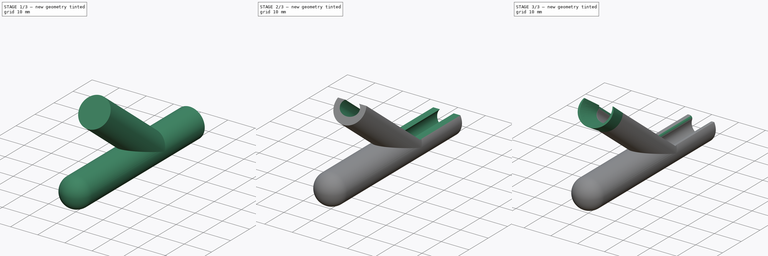
[diagram: build sequence overview — one tinted view per stage of 3, left to right]
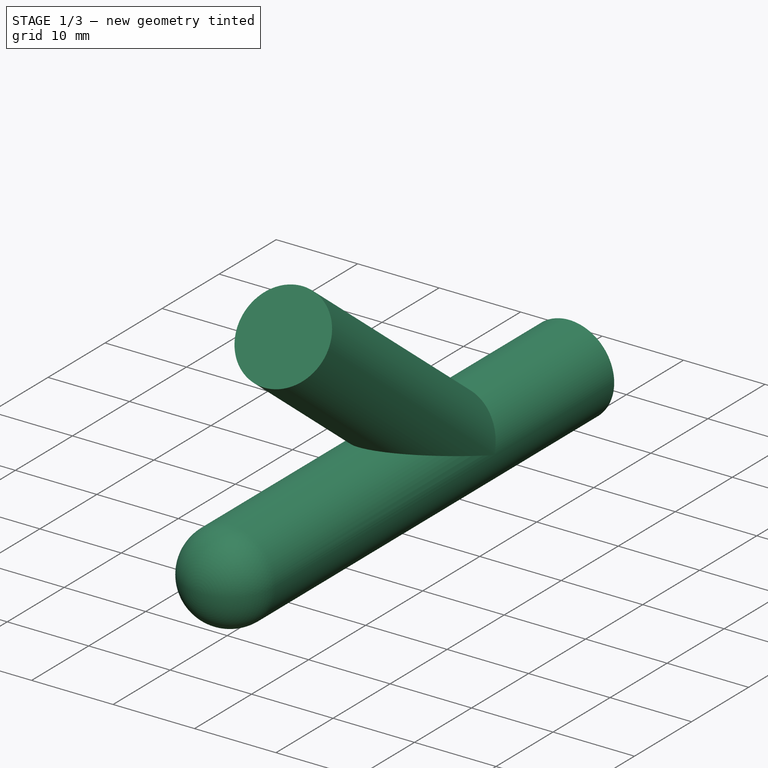
[diagram: stage 1 of 3 — iso view after this stage's code; geometry added in this stage tinted green]
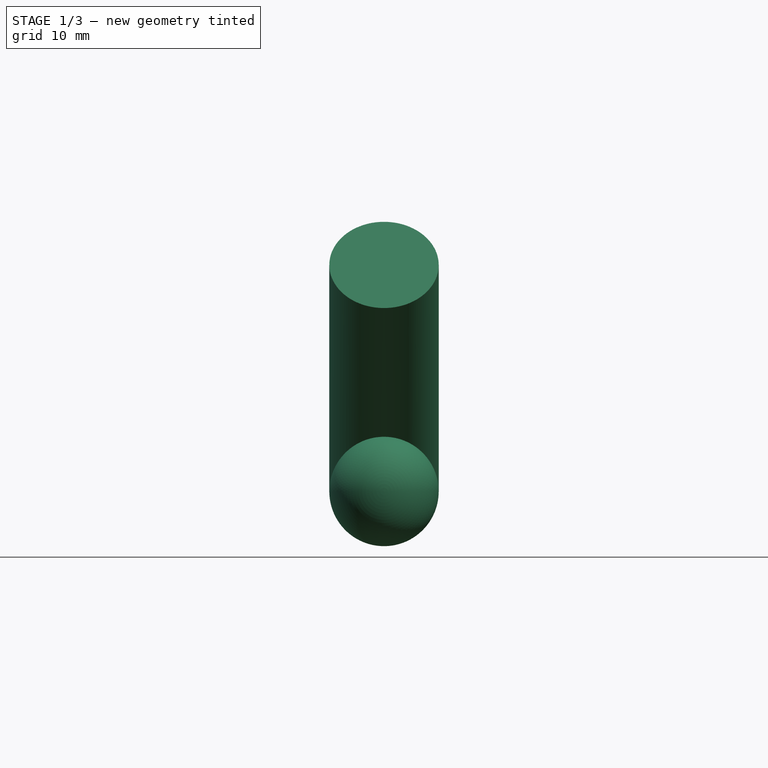
[diagram: stage 1 of 3 — front view after this stage's code; geometry added in this stage tinted green]
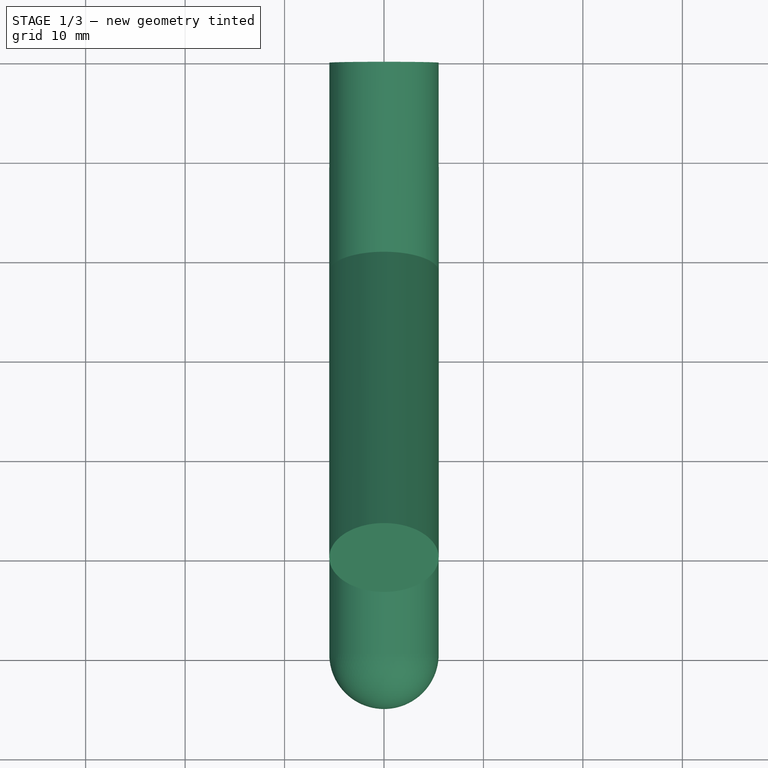
[diagram: stage 1 of 3 — top view after this stage's code; geometry added in this stage tinted green]
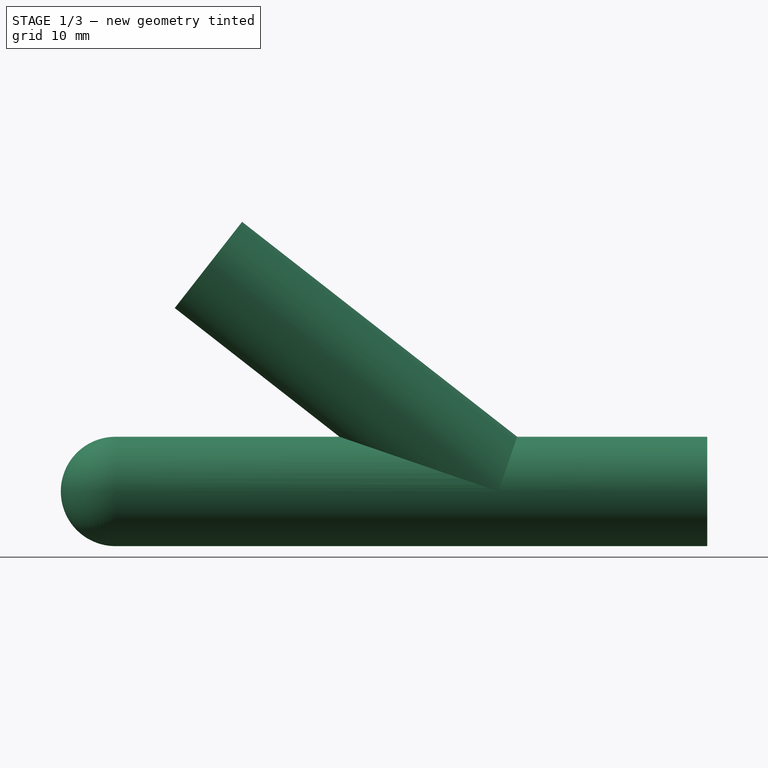
[diagram: stage 1 of 3 — right view after this stage's code; geometry added in this stage tinted green]
FCSTD DOCUMENT  (FreeCAD 1.1R39747 (Git))
Label: Укладыватель в гофру
License: All rights reserved
LicenseURL: https://en.wikipedia.org/wiki/All_rights_reserved
objects: Sketcher::SketchObject×6, PartDesign::Revolution×1, PartDesign::AdditiveCylinder×1, PartDesign::Pocket×1, App::DocumentObjectGroup×1, PartDesign::SubtractivePipe×1, PartDesign::AdditiveLoft×1, PartDesign::Fillet×1, PartDesign::Body×1, App::Point×1
note: 31 computed .brp shape members not serialized (recipe doc carries the construction recipe); baked Part::Feature solids carry a one-line shape summary decoded from their .brp

FEATURE [Sketcher::SketchObject] Sketch
  ArcFitTolerance = 1e-06
  AttachmentSupport = -> [YZ_Plane]
  ExternalTypes = [0]
  FullyConstrained = true
  MakeInternals = false
  MapMode = 5
  Placement = pos=(0,0,0) rot=(0.57735,0.57735,0.57735;2.0944rad)
  sketch-geometry (4):
    g0: ArcOfCircle CenterX=-59.5 CenterY=0 CenterZ=0 NormalX=0 NormalY=0 NormalZ=1 AngleXU=0 Radius=5.5 StartAngle=1.5708 EndAngle=3.14159
    g1: LineSegment StartX=-59.5 StartY=5.5 StartZ=0 EndX=0 EndY=5.5 EndZ=0
    g2: LineSegment StartX=-65 StartY=-1.8e-15 StartZ=0 EndX=0 EndY=0 EndZ=0
    g3: LineSegment StartX=0 StartY=0 StartZ=0 EndX=0 EndY=5.5 EndZ=0
  constraints (11):
    c: PointOnObject(g0,g-1)
    c: Horizontal(g1)
    c: Tangent(g1,g0) = 1.5708
    c: Coincident(g2,g0)
    c: Coincident(g2,g-1)
    c: Coincident(g3,g2)
    c: Coincident(g3,g1)
    c: Vertical(g3)
    c: DistanceY(g2,g1) = 5.5
    c: DistanceX(g2,g2) = 65
    c: PointOnObject(g0,g2)
FEATURE [PartDesign::Revolution] Revolution
  Angle = 360
  Angle2 = 60
  Axis = (1e-16,1,-1e-16)
  Base = (0,0,0)
  Placement = pos=(0,0,0) rot=(1,1,1;2.0944rad)
  Profile = -> Sketch
  ReferenceAxis = -> Y_Axis
  Refine = true
  Suppressed = false
  Type = 0
FEATURE [Sketcher::SketchObject] Sketch001
  ArcFitTolerance = 1e-06
  AttachmentSupport = -> [XZ_Plane]
  ExternalTypes = [0]
  FullyConstrained = false
  MakeInternals = false
  MapMode = 5
  Placement = pos=(0,0,0) rot=(1,0,0;1.5708rad)
  sketch-geometry (4):
    g0: ArcOfCircle CenterX=0 CenterY=0 CenterZ=0 NormalX=0 NormalY=0 NormalZ=1 AngleXU=0 Radius=10.0797 StartAngle=0.3207 EndAngle=2.82089
    g1: ArcOfCircle CenterX=0 CenterY=0 CenterZ=0 NormalX=0 NormalY=0 NormalZ=1 AngleXU=0 Radius=4 StartAngle=2.22365 EndAngle=7.20113
    g2: LineSegment StartX=-9.56574 StartY=3.17742 StartZ=0 EndX=-2.42981 EndY=3.17742 EndZ=0
    g3: LineSegment StartX=2.42981 StartY=3.17742 StartZ=0 EndX=9.56574 EndY=3.17742 EndZ=0
  constraints (10):
    c: Coincident(g0,g-1)
    c: Coincident(g1,g0)
    c: Coincident(g2,g0)
    c: Coincident(g2,g1)
    c: Coincident(g3,g1)
    c: Coincident(g3,g0)
    c: Horizontal(g2)
    c: Horizontal(g3)
    c: Horizontal(g1,g1)
    c: Diameter(g1) = 8
FEATURE [PartDesign::AdditiveCylinder] Cylinder
  Angle = 360
  AttacherType = Attacher::AttachEngine3D
  AttachmentOffset = pos=(0,-21,0) rot=(1,0,0;0.907571rad)
  AttachmentSupport = -> [XY_Plane]
  BaseFeature = -> Revolution
  FirstAngle = 0
  Height = 37
  MapMode = 5
  Placement = pos=(0,-21,0) rot=(1,0,0;0.907571rad)
  Radius = 5.5
  Refine = true
  SecondAngle = 0
  Suppressed = false
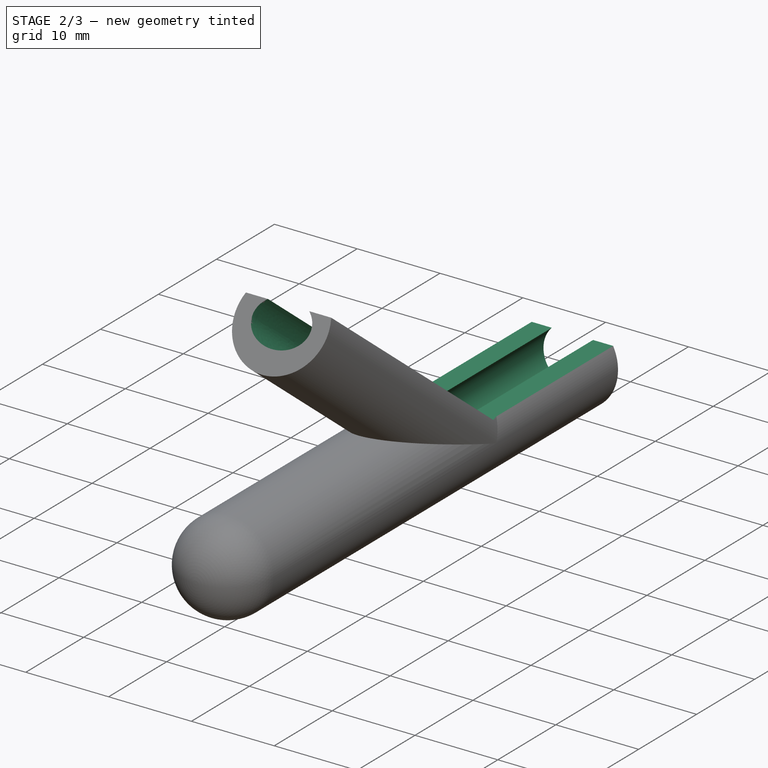
[diagram: stage 2 of 3 — iso view after this stage's code; geometry added in this stage tinted green]
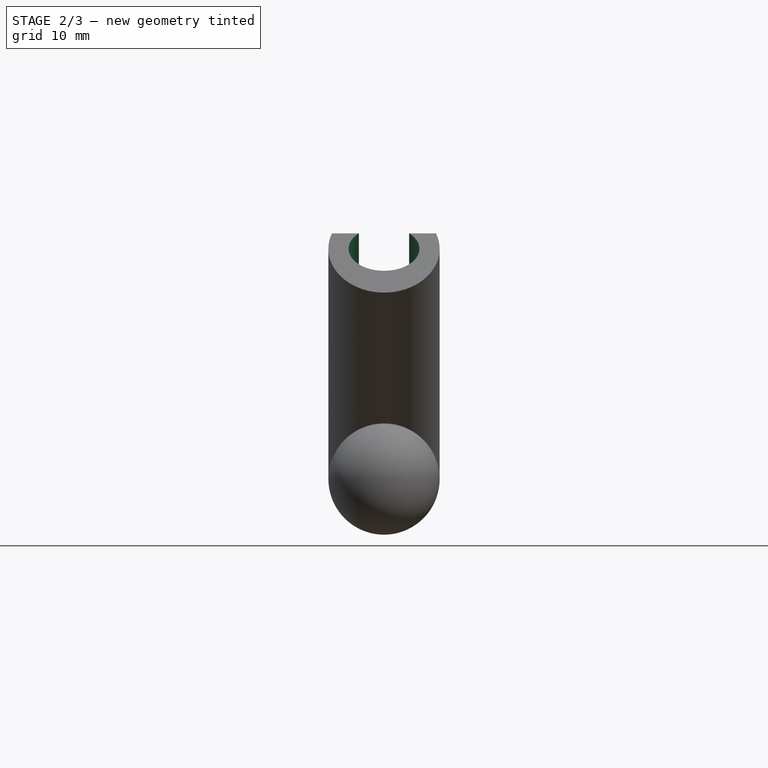
[diagram: stage 2 of 3 — front view after this stage's code; geometry added in this stage tinted green]
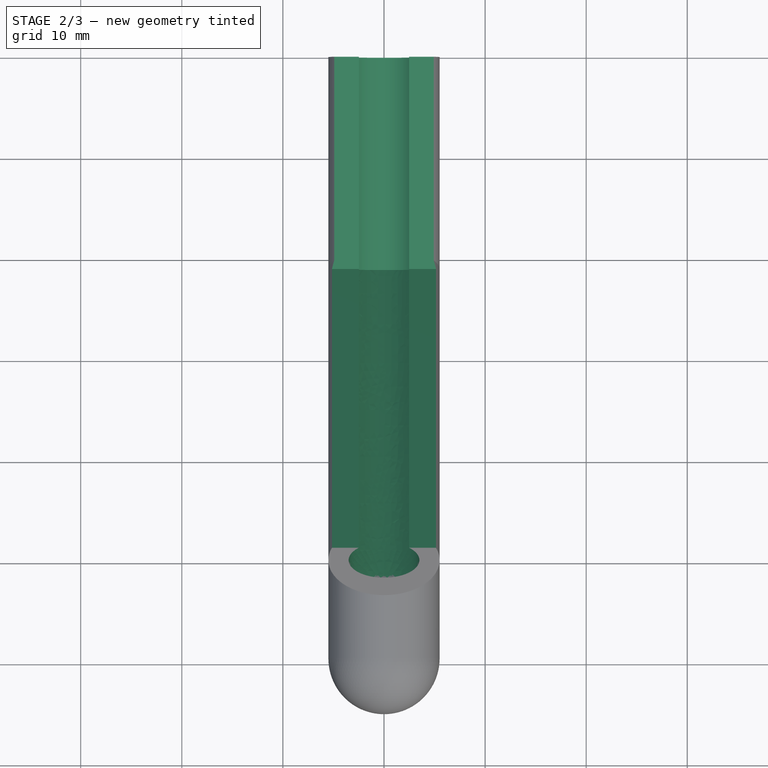
[diagram: stage 2 of 3 — top view after this stage's code; geometry added in this stage tinted green]
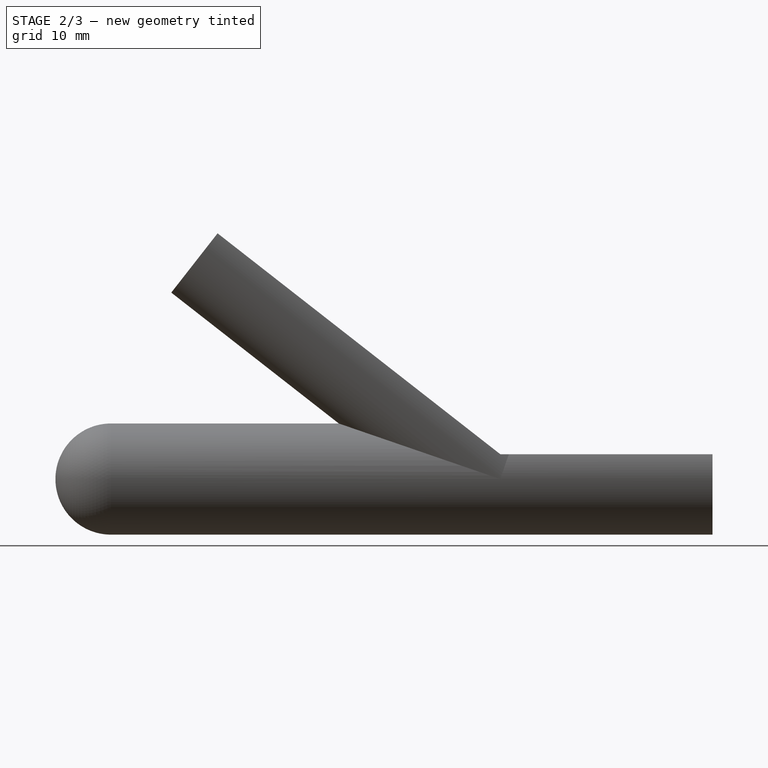
[diagram: stage 2 of 3 — right view after this stage's code; geometry added in this stage tinted green]
FEATURE [Sketcher::SketchObject] Sketch002
  ArcFitTolerance = 1e-06
  AttachmentSupport = -> [YZ_Plane]
  ExternalGeometry = -> [Cylinder]
  ExternalTypes = [0]
  FullyConstrained = false
  MakeInternals = false
  MapMode = 5
  Placement = pos=(0,0,0) rot=(0.57735,0.57735,0.57735;2.0944rad)
  sketch-geometry (4):
    g0: LineSegment StartX=-65 StartY=9.799e-13 StartZ=0 EndX=-65 EndY=51.4406 EndZ=0
    g1: LineSegment StartX=-65 StartY=51.4406 StartZ=0 EndX=-92.6475 EndY=51.4406 EndZ=0
    g2: LineSegment StartX=-92.6475 StartY=51.4406 StartZ=0 EndX=-92.6475 EndY=0 EndZ=0
    g3: LineSegment StartX=-92.6475 StartY=0 StartZ=0 EndX=-65 EndY=9.799e-13 EndZ=0
  constraints (9):
    c: Vertical(g0)
    c: Coincident(g1,g0)
    c: Horizontal(g1)
    c: Coincident(g2,g1)
    c: PointOnObject(g2,g-1)
    c: Coincident(g3,g2)
    c: Coincident(g3,g0)
    c: Vertical(g2)
    c: Coincident(g0,g-5)
FEATURE [PartDesign::Pocket] Pocket
  BaseFeature = -> Cylinder
  Direction = (-1,0,0)
  Length = 21
  Length2 = 12
  Placement = pos=(0,-21,0) rot=(1,0,0;0.907571rad)
  Profile = -> Sketch002
  ReferenceAxis = -> Sketch002 [N_Axis]
  Refine = true
  Suppressed = false
  Type = 4
FEATURE [App::DocumentObjectGroup] Measurements
FEATURE [Sketcher::SketchObject] Sketch003
  ArcFitTolerance = 1e-06
  AttachmentSupport = -> [YZ_Plane]
  ExternalGeometry = -> [Pocket]
  ExternalTypes = [0,0,0]
  FullyConstrained = false
  MakeInternals = false
  MapMode = 5
  Placement = pos=(0,0,0) rot=(0.57735,0.57735,0.57735;2.0944rad)
  sketch-geometry (2):
    g0: LineSegment StartX=-21 StartY=-4e-16 StartZ=0 EndX=0 EndY=0 EndZ=0
    g1: LineSegment StartX=-21 StartY=-4e-16 StartZ=0 EndX=-60.7647 EndY=31.0676 EndZ=0
  constraints (5):
    c: Coincident(g0,g-3)
    c: Coincident(g0,g-1)
    c: Coincident(g1,g0)
    c: Angle(g0,g1) = 2.47837
    c: PointOnObject(g-3,g1)
FEATURE [PartDesign::SubtractivePipe] SubtractivePipe
  AuxilleryCurvelinear = true
  AuxillerySpineTangent = false
  BaseFeature = -> Pocket
  Binormal = (0,0,0)
  Mode = 0
  Placement = pos=(0,-21,0) rot=(1,0,0;0.907571rad)
  Profile = -> Sketch001
  Refine = true
  Spine = -> Sketch003
  SpineTangent = false
  Suppressed = false
  Transformation = 0
  Transition = 0
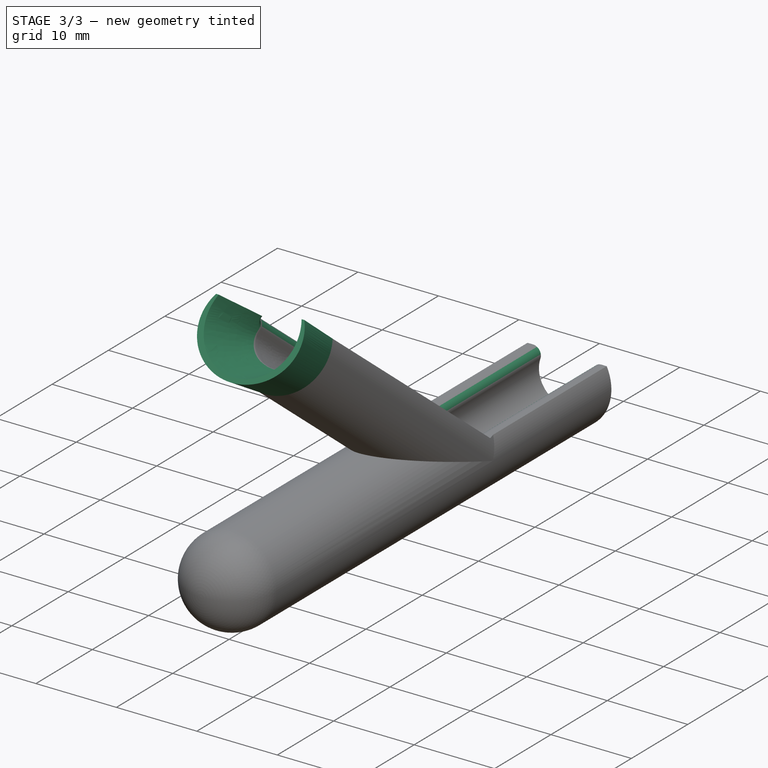
[diagram: stage 3 of 3 — iso view after this stage's code; geometry added in this stage tinted green]
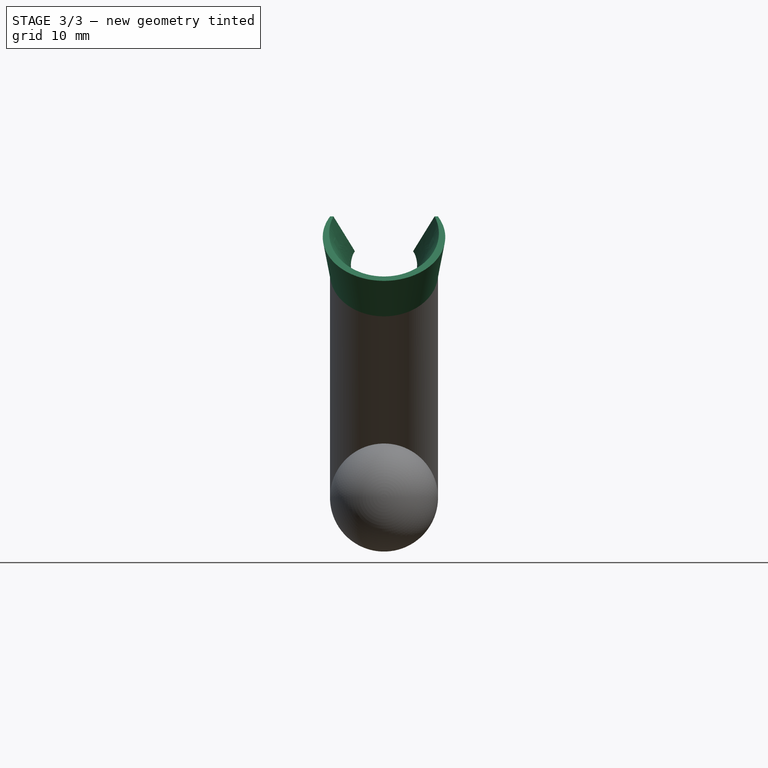
[diagram: stage 3 of 3 — front view after this stage's code; geometry added in this stage tinted green]
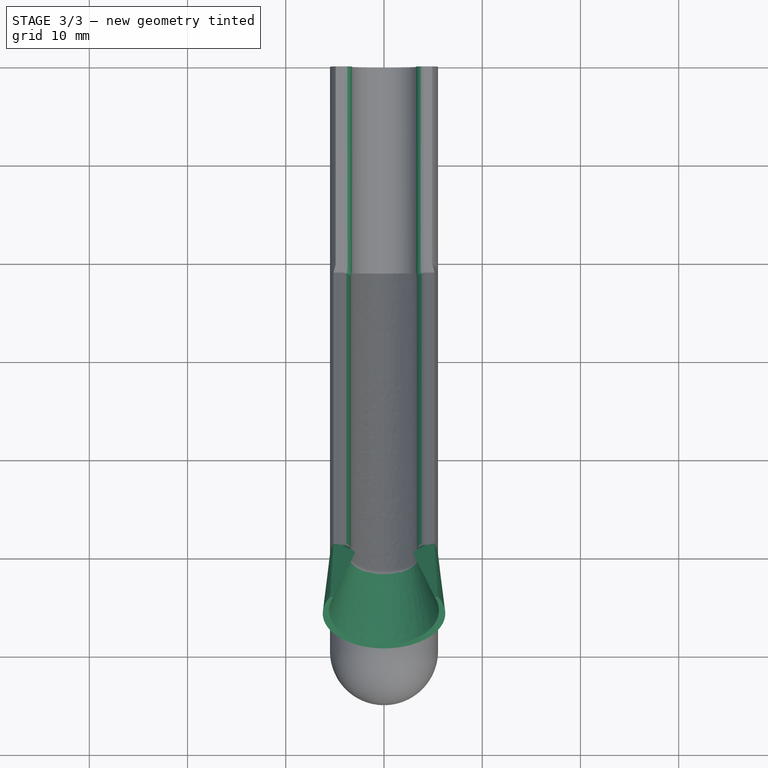
[diagram: stage 3 of 3 — top view after this stage's code; geometry added in this stage tinted green]
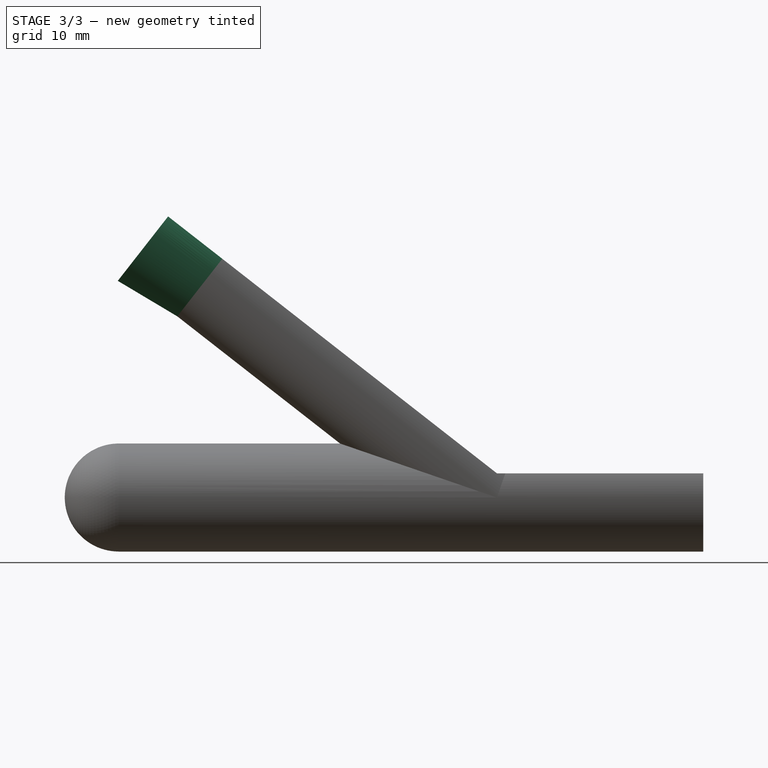
[diagram: stage 3 of 3 — right view after this stage's code; geometry added in this stage tinted green]
FEATURE [Sketcher::SketchObject] Sketch005
  ArcFitTolerance = 1e-06
  AttachmentSupport = -> [SubtractivePipe]
  ExternalGeometry = -> [SubtractivePipe]
  ExternalTypes = [0]
  FullyConstrained = true
  MakeInternals = false
  MapMode = 5
  Placement = pos=(0,-50.1564,22.7795) rot=(1,0,0;0.907571rad)
  sketch-geometry (8):
    g0: ArcOfEllipse CenterX=1.4e-15 CenterY=2.598e-06 CenterZ=0 NormalX=0 NormalY=0 NormalZ=1 MajorRadius=3.49999 MinorRadius=2.75804 AngleXU=-3.14159 StartAngle=5.50333 EndAngle=10.2046
    g1: LineSegment [constr] StartX=-3.49999 StartY=2.598e-06 StartZ=0 EndX=3.49999 EndY=2.598e-06 EndZ=0
    g2: LineSegment [constr] StartX=2.8e-15 StartY=-2.75804 StartZ=0 EndX=0 EndY=2.75804 EndZ=0
    g3: GeomPoint [constr] X=-2.1548 Y=2.598e-06 Z=0
    g4: GeomPoint [constr] X=2.1548 Y=2.598e-06 Z=0
    g5: ArcOfCircle CenterX=1.1e-15 CenterY=-1.93191e-10 CenterZ=0 NormalX=0 NormalY=0 NormalZ=1 AngleXU=0 Radius=5.5 StartAngle=2.78123 EndAngle=6.64355
    g6: LineSegment StartX=-5.14672 StartY=1.9394 StartZ=0 EndX=-2.48854 EndY=1.9394 EndZ=0
    g7: LineSegment StartX=2.48854 StartY=1.9394 StartZ=0 EndX=5.14672 EndY=1.9394 EndZ=0
  constraints (13):
    c: InternalAlignment(g1-g4 -> g0) x4
    c: Coincident(g5,g-4)
    c: Coincident(g-7,g5)
    c: Coincident(g6,g5)
    c: Coincident(g6,g-5)
    c: Coincident(g7,g5)
    c: Equal(g-3,g5)
    c: Coincident(g0,g7)
    c: Coincident(g0,g-6)
    c: Coincident(g6,g0)
    c: PointOnObject(g2,g-5)
    c: PointOnObject(g2,g-2)
    c: PointOnObject(g1,g-5)
FEATURE [Sketcher::SketchObject] Sketch006
  ArcFitTolerance = 1e-06
  AttachmentOffset = pos=(0,0,7) rot=(0,0,1;0rad)
  AttachmentSupport = -> [SubtractivePipe]
  ExternalGeometry = -> [SubtractivePipe]
  ExternalTypes = [0]
  FullyConstrained = false
  MakeInternals = false
  MapMode = 5
  Placement = pos=(0,-55.6725,27.0891) rot=(1,0,0;0.907571rad)
  sketch-geometry (8):
    g0: ArcOfEllipse CenterX=0 CenterY=-0.740107 CenterZ=0 NormalX=0 NormalY=0 NormalZ=1 MajorRadius=6.23699 MinorRadius=5.64134 AngleXU=-3.14159 StartAngle=5.78825 EndAngle=9.91972
    g1: LineSegment [constr] StartX=-6.23699 StartY=-0.740107 StartZ=0 EndX=6.23699 EndY=-0.740107 EndZ=0
    g2: LineSegment [constr] StartX=0 StartY=-6.38144 StartZ=0 EndX=0 EndY=4.90123 EndZ=0
    g3: GeomPoint [constr] X=-2.65996 Y=-0.740107 Z=0
    g4: GeomPoint [constr] X=2.65996 Y=-0.740107 Z=0
    g5: ArcOfCircle CenterX=0 CenterY=-0.23169 CenterZ=0 NormalX=0 NormalY=0 NormalZ=1 AngleXU=0 Radius=5.58591 StartAngle=2.7424 EndAngle=6.68238
    g6: LineSegment StartX=-5.14672 StartY=1.9394 StartZ=0 EndX=-5.48854 EndY=1.9394 EndZ=0
    g7: LineSegment StartX=5.48854 StartY=1.9394 StartZ=0 EndX=5.14672 EndY=1.9394 EndZ=0
  constraints (14):
    c: InternalAlignment(g1-g4 -> g0) x4
    c: PointOnObject(g2,g-2)
    c: Coincident(g0,g7)
    c: Horizontal(g7)
    c: PointOnObject(g6,g-3)
    c: Coincident(g0,g6)
    c: Coincident(g5,g6)
    c: Horizontal(g6)
    c: Horizontal(g0,g0)
    c: PointOnObject(g2,g-2)
    c: Equal(g6,g7)
    c: Distance(g0,g-6) = 3
    c: Horizontal(g0,g-6)
    c: Coincident(g5,g7)
FEATURE [PartDesign::AdditiveLoft] AdditiveLoft
  BaseFeature = -> SubtractivePipe
  Closed = false
  Placement = pos=(0,-21,0) rot=(1,0,0;0.907571rad)
  Profile = -> Sketch005
  Refine = true
  Ruled = false
  Sections = -> [Sketch006]
  Suppressed = false
FEATURE [PartDesign::Fillet] Fillet
  Base = -> AdditiveLoft [Edge31,Edge19,Edge29,Edge24,Edge39]
  BaseFeature = -> AdditiveLoft
  Placement = pos=(0,-21,0) rot=(1,0,0;0.907571rad)
  Radius = 1
  Refine = true
  SupportTransform = false
  Suppressed = false
  UseAllEdges = false
FEATURE [PartDesign::Body] Body  label="Тело"
  AllowCompound = false
  Group = -> [Sketch,Revolution,Sketch001,Cylinder,Sketch002,Pocket,Sketch003,SubtractivePipe,Sketch005,Sketch006,AdditiveLoft,Fillet]
  Origin = -> Origin
  Tip = -> Fillet
FEATURE [App::Point] Origin001  label="Origin"
  Role = Origin
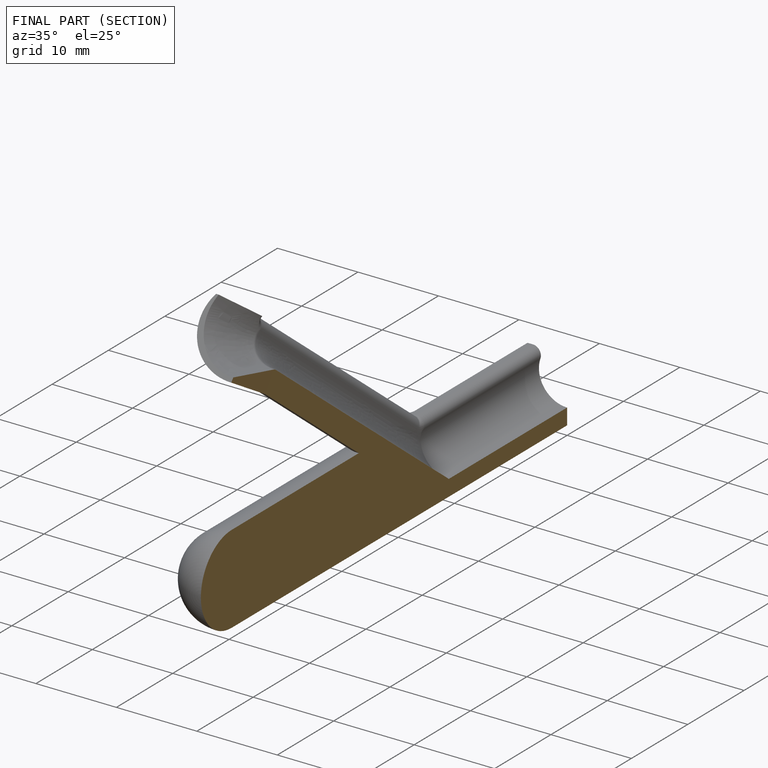
[diagram: finished part — half-section view (interior)]
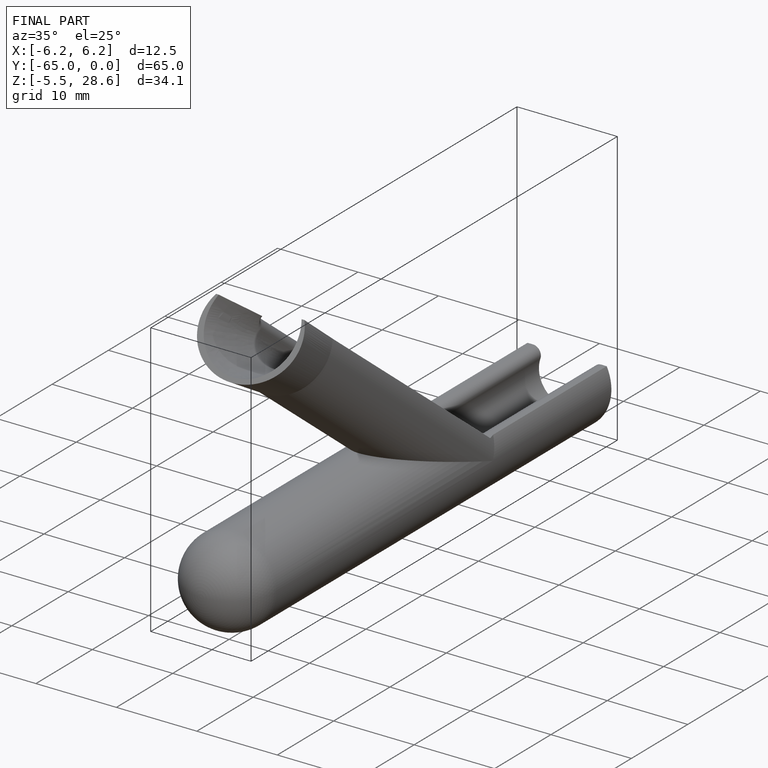
[diagram: finished part — iso view with bounding-box wireframe]
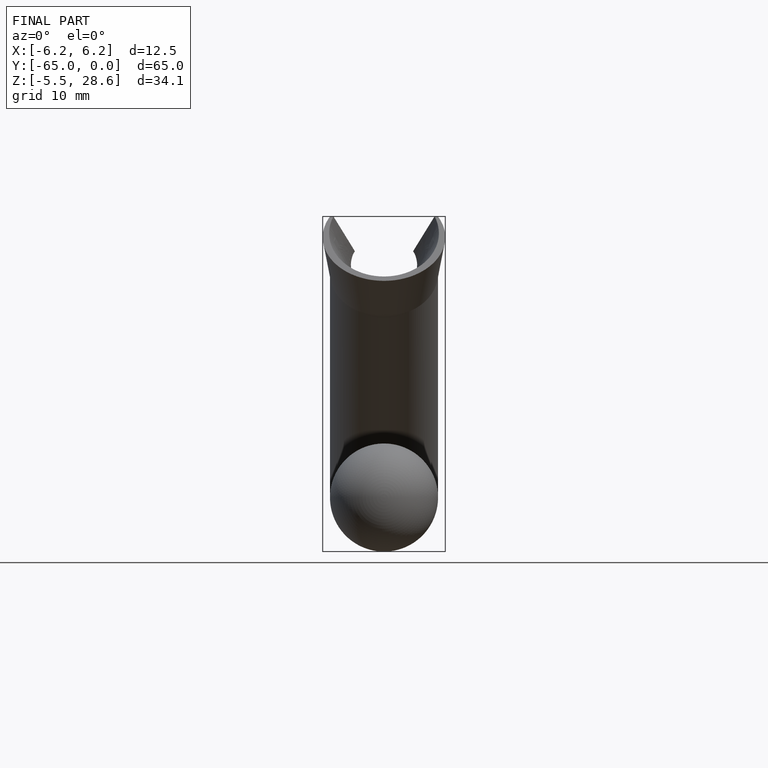
[diagram: finished part — front view with bounding-box wireframe]
